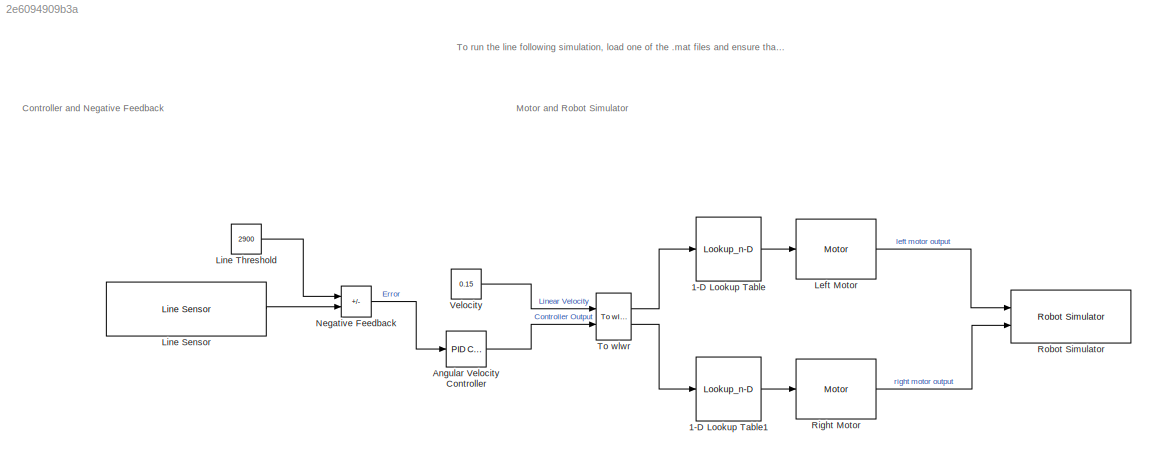
MODEL slx_2e6094909b3a
KIND model
CONFIG AbsTol = auto
CONFIG EnableMultiTasking = off
CONFIG FixedStep = 0.01
CONFIG MaxStep = auto
CONFIG MinStep = auto
CONFIG RelTol = 1e-3
CONFIG SampleTimeConstraint = Unconstrained
CONFIG SolverName = FixedStepDiscrete
CONFIG StartTime = 0.0
CONFIG StopTime = 100
BLOCK [Lookup_n-D] 1-D Lookup Table
  BreakpointsForDimension1 = WheelSpeed
  InputPortMap = u0
  InternalRulePriority = Speed
  NumberOfTableDimensions = 1
  Ports = [1, 1]
  RndMeth = Simplest
  Table = InputPWM
BLOCK [Lookup_n-D] 1-D Lookup Table1
  BreakpointsForDimension1 = WheelSpeed
  InputPortMap = u0
  InternalRulePriority = Speed
  NumberOfTableDimensions = 1
  Ports = [1, 1]
  RndMeth = Simplest
  Table = InputPWM
BLOCK [Reference] Angular Velocity Controller  REF=slpidlib/PID Controller
  Ports = [1, 1]
  SourceBlock = slpidlib/PID Controller
  SourceProductBaseCode = SL
  SourceType = PID 1dof
BLOCK [Reference] Left Motor  REF=mobileRoboticsTrainingLib/Motor
  Ports = [1, 1]
  SourceBlock = mobileRoboticsTrainingLib/Motor
  SourceProductName = Mobile Robotics Training Library
  SourceType = Motor Model
BLOCK [Reference] Line Sensor  REF=mobileRoboticsTrainingLib/Line Sensor
  Ports = [0, 1]
  SourceBlock = mobileRoboticsTrainingLib/Line Sensor
  SourceProductName = Mobile Robotics Training Library
  SourceType = Line Sensor Simulation
BLOCK [Constant] Line Threshold
  Value = 2900
BLOCK [Sum] Negative Feedback
  IconShape = rectangular
  Inputs = +-
  Ports = [2, 1]
BLOCK [Reference] Right Motor  REF=mobileRoboticsTrainingLib/Motor
  Ports = [1, 1]
  SourceBlock = mobileRoboticsTrainingLib/Motor
  SourceProductName = Mobile Robotics Training Library
  SourceType = Motor Model
BLOCK [Reference] Robot Simulator  REF=mobileRoboticsTrainingLib/Robot Simulator
  Ports = [2]
  Priority = 99
  SourceBlock = mobileRoboticsTrainingLib/Robot Simulator
  SourceProductName = Mobile Robotics Training Library
  SourceType = Robot Simulator
BLOCK [Reference] To wlwr  REF=mobileRoboticsTrainingLib/To wlwr
  Ports = [2, 2]
  SourceBlock = mobileRoboticsTrainingLib/To wlwr
  SourceProductName = Mobile Robotics Training Library
  SourceType = To wlwr
BLOCK [Constant] Velocity
  Value = 0.15
ANNOTATION (root): Controller and Negative Feedback
ANNOTATION (root): Motor and Robot Simulator
ANNOTATION (root): To run the line following simulation, load one of the .mat files and ensure that the starting point for the robot is correct. To do this open the Robot Simulator block and select "set position interactively" to ensure it is at the start of the line.
LINE 1-D Lookup Table1:1 -> Right Motor:1
LINE 1-D Lookup Table:1 -> Left Motor:1
LINE Angular Velocity Controller:1 -> To wlwr:2
LINE Left Motor:1 -> Robot Simulator:1
LINE Line Sensor:1 -> Negative Feedback:2
LINE Line Threshold:1 -> Negative Feedback:1
LINE Negative Feedback:1 -> Angular Velocity Controller:1
LINE Right Motor:1 -> Robot Simulator:2
LINE To wlwr:1 -> 1-D Lookup Table:1
LINE To wlwr:2 -> 1-D Lookup Table1:1
LINE Velocity:1 -> To wlwr:1
